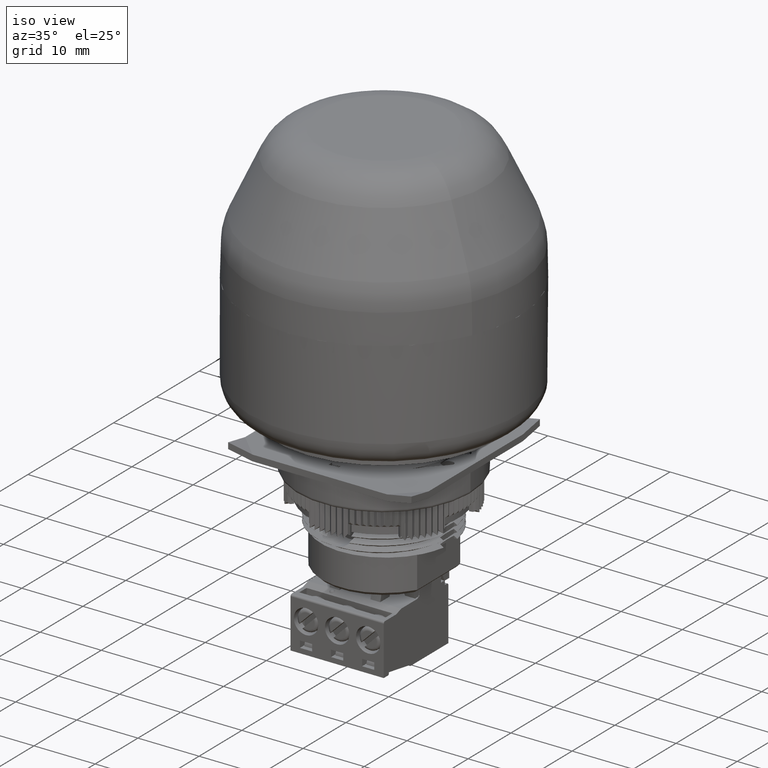
[diagram: clean part render]
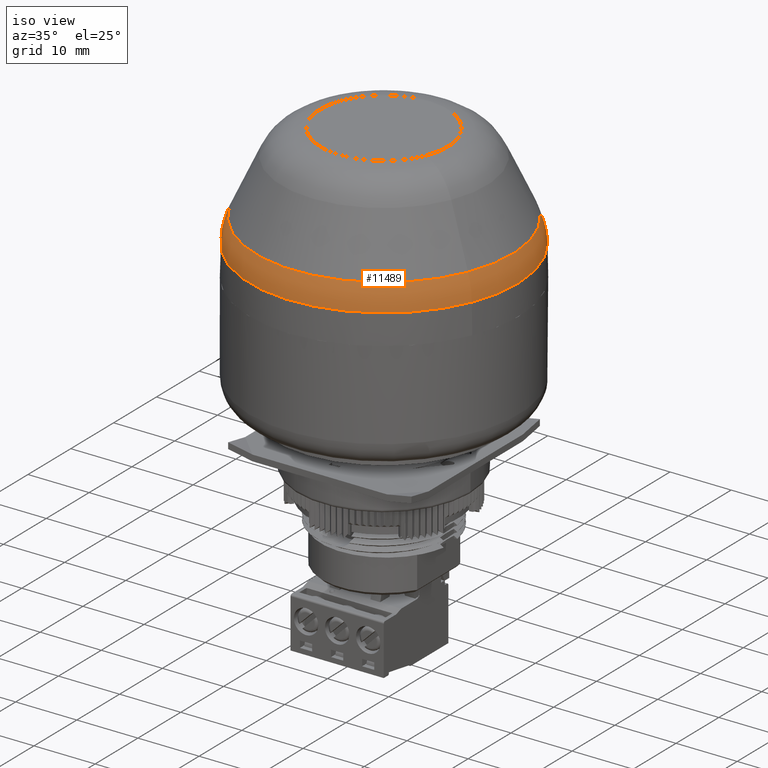
[diagram: same view with one face highlighted and labeled with its STEP entity id]
A machine part, iso view. The second image highlights one B-rep face of the part: STEP entity #11489.
In plain terms, the highlighted toroidal blend (fillet) surface has major radius 11.9164 mm and minor (blend) radius 10 mm.
Its self-contained STEP definition (entity closure, byte-faithful):
#9318=TOROIDAL_SURFACE('',#36331,11.9164338289904,10.);
#11489=ADVANCED_FACE('',(#12807,#12808),#9318,.T.);
#12807=FACE_BOUND('',#14660,.T.);
#12808=FACE_BOUND('',#14661,.T.);
#14660=EDGE_LOOP('',(#24580));
#14661=EDGE_LOOP('',(#24581));
#24580=ORIENTED_EDGE('',*,*,#32808,.T.);
#24581=ORIENTED_EDGE('',*,*,#32806,.F.);
#27846=VERTEX_POINT('',#81894);
#27848=VERTEX_POINT('',#82019);
#32806=EDGE_CURVE('',#27846,#27846,#33671,.T.);
#32808=EDGE_CURVE('',#27848,#27848,#33672,.T.);
#33671=CIRCLE('',#36328,21.9149107805544);
#33672=CIRCLE('',#36330,20.9795116993569);
#36328=AXIS2_PLACEMENT_3D('',#81893,#44869,#44870);
#36330=AXIS2_PLACEMENT_3D('',#82018,#44873,#44874);
#36331=AXIS2_PLACEMENT_3D('',#82020,#44875,#44876);
#44869=DIRECTION('',(0.,0.,-1.));
#44870=DIRECTION('',(0.923728021347068,-0.383049008063238,0.));
#44873=DIRECTION('',(0.,0.,-1.));
#44874=DIRECTION('',(0.923728021347068,-0.383049008063237,0.));
#44875=DIRECTION('',(0.,0.,-1.));
#44876=DIRECTION('',(-0.383049008063237,-0.923728021347068,0.));
#81893=CARTESIAN_POINT('',(0.991103575624624,1.7832801446816,3.27276788826011));
#81894=CARTESIAN_POINT('',(21.2345207489436,-6.6112046916041,3.27276788826011));
#82018=CARTESIAN_POINT('',(0.991103575624624,1.7832801446816,7.32442644129477));
#82019=CARTESIAN_POINT('',(20.3704664064992,-6.25290100140813,7.32442644129477));
#82020=CARTESIAN_POINT('',(0.991103575624624,1.7832801446816,3.09824382388762));